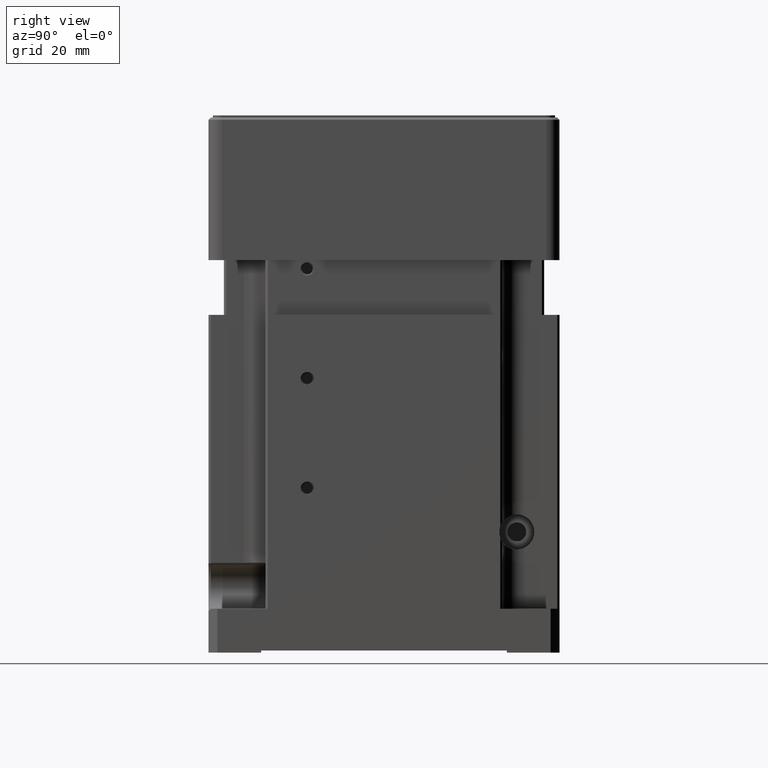
[diagram: clean part render]
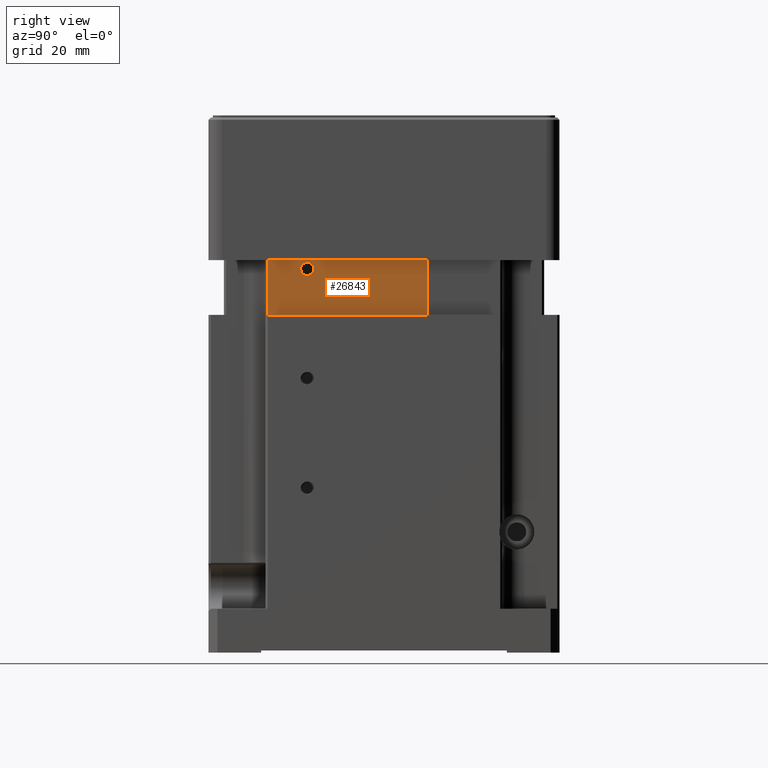
[diagram: same view with one face highlighted and labeled with its STEP entity id]
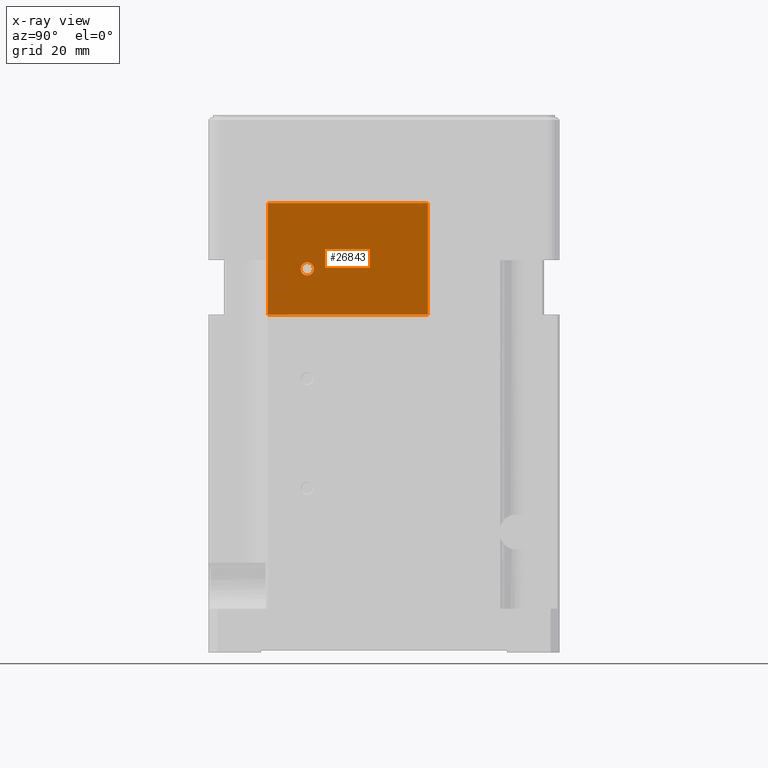
[diagram: x-ray of the same camera — body ghosted, the highlighted face saturated]
A machine part, right view. The second image highlights one B-rep face of the part: STEP entity #26843.
The next image is the same camera in x-ray: the body ghosted, the highlighted face saturated — about 0% of this face is hidden behind the body in this view.
In plain terms, the highlighted planar face has unit normal (-1, 0, 0).
Its self-contained STEP definition (entity closure, byte-faithful):
#721 = VERTEX_POINT ( 'NONE', #12584 ) ;
#1498 = DIRECTION ( 'NONE',  ( 0.000000000000000000, 0.000000000000000000, 1.000000000000000000 ) ) ;
#1635 = VERTEX_POINT ( 'NONE', #15890 ) ;
#1658 = CARTESIAN_POINT ( 'NONE',  ( 36.50000000000000000, 10.00000000000000000, 92.50000000000000000 ) ) ;
#2027 = CARTESIAN_POINT ( 'NONE',  ( 36.50000000000000000, -16.00000000000000000, 77.50000000000000000 ) ) ;
#3007 = CARTESIAN_POINT ( 'NONE',  ( 36.50000000000000000, 10.00000000000000000, 67.00000000000000000 ) ) ;
#4188 = FACE_OUTER_BOUND ( 'NONE', #12686, .T. ) ;
#5542 = ORIENTED_EDGE ( 'NONE', *, *, #22634, .F. ) ;
#5809 = DIRECTION ( 'NONE',  ( 1.000000000000000000, 0.000000000000000000, 0.000000000000000000 ) ) ;
#6629 = AXIS2_PLACEMENT_3D ( 'NONE', #32124, #5809, #31370 ) ;
#6755 = ORIENTED_EDGE ( 'NONE', *, *, #25202, .F. ) ;
#7331 = CARTESIAN_POINT ( 'NONE',  ( 36.50000000000000000, -26.50000000000000000, 67.00000000000000000 ) ) ;
#10122 = CARTESIAN_POINT ( 'NONE',  ( 36.50000000000000000, 10.00000000000000000, 92.50000000000000000 ) ) ;
#10249 = EDGE_CURVE ( 'NONE', #26970, #23763, #18682, .T. ) ;
#10514 = PLANE ( 'NONE',  #21062 ) ;
#12584 = CARTESIAN_POINT ( 'NONE',  ( 36.50000000000000000, -19.00000000000000000, 77.50000000000000000 ) ) ;
#12686 = EDGE_LOOP ( 'NONE', ( #26762, #30185, #14657, #5542 ) ) ;
#13184 = DIRECTION ( 'NONE',  ( 0.000000000000000000, -1.000000000000000000, 0.000000000000000000 ) ) ;
#14657 = ORIENTED_EDGE ( 'NONE', *, *, #18327, .T. ) ;
#15540 = CIRCLE ( 'NONE', #35156, 1.500000000000001332 ) ;
#15764 = VECTOR ( 'NONE', #13184, 1000.000000000000000 ) ;
#15890 = CARTESIAN_POINT ( 'NONE',  ( 36.50000000000000000, -26.50000000000000000, 92.50000000000000000 ) ) ;
#15895 = CARTESIAN_POINT ( 'NONE',  ( 36.50000000000000000, 36.50000000000000000, 92.50000000000000000 ) ) ;
#18012 = ORIENTED_EDGE ( 'NONE', *, *, #34706, .F. ) ;
#18327 = EDGE_CURVE ( 'NONE', #36799, #1635, #24718, .T. ) ;
#18354 = VECTOR ( 'NONE', #36753, 1000.000000000000000 ) ;
#18682 = LINE ( 'NONE', #30224, #30360 ) ;
#18709 = CARTESIAN_POINT ( 'NONE',  ( 36.50000000000000000, 10.00000000000000000, 92.50000000000000000 ) ) ;
#20275 = DIRECTION ( 'NONE',  ( 0.000000000000000000, 0.000000000000000000, 1.000000000000000000 ) ) ;
#21062 = AXIS2_PLACEMENT_3D ( 'NONE', #15895, #28177, #1498 ) ;
#21177 = EDGE_CURVE ( 'NONE', #36799, #26970, #36939, .T. ) ;
#22634 = EDGE_CURVE ( 'NONE', #23763, #1635, #29311, .T. ) ;
#23763 = VERTEX_POINT ( 'NONE', #7331 ) ;
#23803 = EDGE_LOOP ( 'NONE', ( #6755, #18012 ) ) ;
#24718 = LINE ( 'NONE', #10122, #15764 ) ;
#24790 = VERTEX_POINT ( 'NONE', #2027 ) ;
#25202 = EDGE_CURVE ( 'NONE', #24790, #721, #15540, .T. ) ;
#25688 = VECTOR ( 'NONE', #20275, 1000.000000000000000 ) ;
#26762 = ORIENTED_EDGE ( 'NONE', *, *, #10249, .F. ) ;
#26843 = ADVANCED_FACE ( 'NONE', ( #36995, #4188 ), #10514, .F. ) ;
#26970 = VERTEX_POINT ( 'NONE', #3007 ) ;
#27662 = DIRECTION ( 'NONE',  ( 1.000000000000000000, 0.000000000000000000, 0.000000000000000000 ) ) ;
#28177 = DIRECTION ( 'NONE',  ( -1.000000000000000000, 0.000000000000000000, 0.000000000000000000 ) ) ;
#29311 = LINE ( 'NONE', #37741, #25688 ) ;
#30185 = ORIENTED_EDGE ( 'NONE', *, *, #21177, .F. ) ;
#30224 = CARTESIAN_POINT ( 'NONE',  ( 36.50000000000000000, 10.00000000000000000, 67.00000000000000000 ) ) ;
#30360 = VECTOR ( 'NONE', #35786, 1000.000000000000000 ) ;
#31370 = DIRECTION ( 'NONE',  ( 0.000000000000000000, -1.000000000000000000, 0.000000000000000000 ) ) ;
#32124 = CARTESIAN_POINT ( 'NONE',  ( 36.50000000000000000, -17.50000000000000000, 77.50000000000000000 ) ) ;
#33231 = DIRECTION ( 'NONE',  ( 0.000000000000000000, 1.000000000000000000, 0.000000000000000000 ) ) ;
#34195 = CIRCLE ( 'NONE', #6629, 1.500000000000001332 ) ;
#34706 = EDGE_CURVE ( 'NONE', #721, #24790, #34195, .T. ) ;
#35156 = AXIS2_PLACEMENT_3D ( 'NONE', #35537, #27662, #33231 ) ;
#35537 = CARTESIAN_POINT ( 'NONE',  ( 36.50000000000000000, -17.50000000000000000, 77.50000000000000000 ) ) ;
#35786 = DIRECTION ( 'NONE',  ( 0.000000000000000000, -1.000000000000000000, 0.000000000000000000 ) ) ;
#36753 = DIRECTION ( 'NONE',  ( 0.000000000000000000, 0.000000000000000000, -1.000000000000000000 ) ) ;
#36799 = VERTEX_POINT ( 'NONE', #1658 ) ;
#36939 = LINE ( 'NONE', #18709, #18354 ) ;
#36995 = FACE_BOUND ( 'NONE', #23803, .T. ) ;
#37741 = CARTESIAN_POINT ( 'NONE',  ( 36.50000000000000000, -26.50000000000000000, 67.00000000000000000 ) ) ;